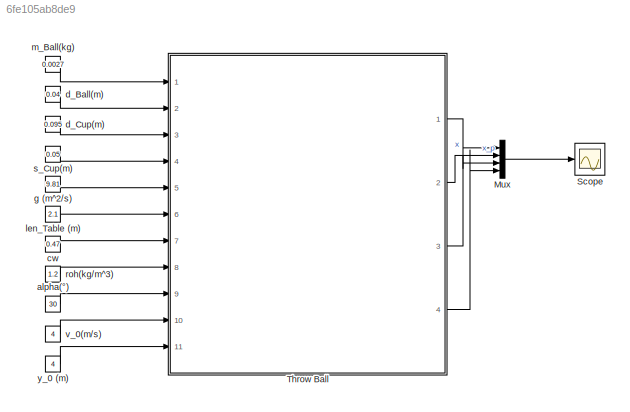
MODEL slx_6fe105ab8de9
KIND model
CONFIG AbsTol = auto
CONFIG EnableMultiTasking = off
CONFIG FixedStep = auto
CONFIG MaxStep = auto
CONFIG MinStep = auto
CONFIG RelTol = 1e-3
CONFIG SampleTimeConstraint = Unconstrained
CONFIG SolverName = VariableStepAuto
CONFIG StartTime = 0.0
CONFIG StopTime = 5.0
WORKSPACE source: mxarray member
WORKSPACE c_w = 0.47
WORKSPACE d_Ball = 0.04
WORKSPACE d_cup = 0.095
WORKSPACE g = 9.81
WORKSPACE len = 2.1
WORKSPACE m_Ball = 2.7
WORKSPACE roh = 1.2
WORKSPACE s_cup = 0.05
BLOCK [Mux] Mux
  DisplayOption = bar
  Ports = [4, 1]
BLOCK [Scope] Scope
  Floating = off
  NumInputPorts = 1
  Ports = [1]
  ScopeSpecificationString = Simulink.scopes.TimeScopeBlockCfg('CurrentConfiguration', extmgr.ConfigurationSet(extmgr.Configuration('Core','General UI',true),extmgr.Configuration('Core','Source UI',true),extmgr.Configuration('Sources','WiredSimulink',true,'DataLoggingVariableName','ScopeData4'),extmgr.Configuration('Visuals','Time Domain',true,'SerializedDisplays',{struct('MinYLimReal','-10.24797','MaxYLimReal','5.78236','YLa...<+1402ch>
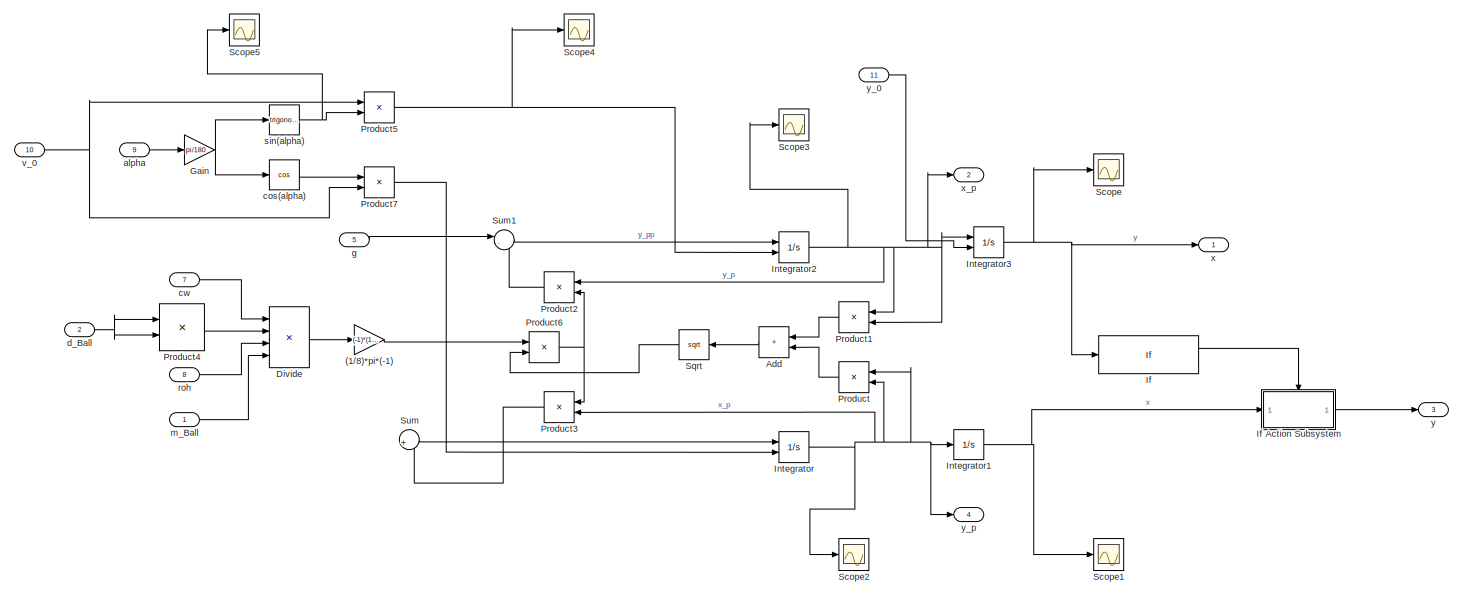
[diagram: Throw Ball - part 1/2, most of the canvas]
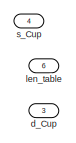
[diagram: Throw Ball - part 2/2, middle left region]
BLOCK [SubSystem] Throw Ball
  Ports = [11, 4]
  RequestExecContextInheritance = off
BLOCK [Trigonometry] Throw Ball/ sin(alpha)
  OutputSignalType = real
  Ports = [1, 1]
BLOCK [Gain] Throw Ball/(1//8)*pi*(-1)
  Gain = (-1)*(1/8)*pi
BLOCK [Sum] Throw Ball/Add
  IconShape = rectangular
  Ports = [2, 1]
BLOCK [Product] Throw Ball/Divide
  Inputs = ***/
  Ports = [4, 1]
BLOCK [Gain] Throw Ball/Gain
  Gain = pi/180
BLOCK [If] Throw Ball/If
  Ports = [1, 2]
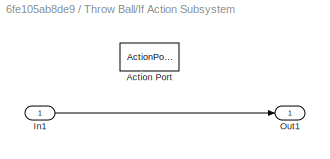
BLOCK [SubSystem] Throw Ball/If Action Subsystem
  Ports = [1, 1, 0, 0, 0, 0, 0, 1]
  RequestExecContextInheritance = off
  TreatAsAtomicUnit = on
BLOCK [ActionPort] Throw Ball/If Action Subsystem/Action Port
  ActionPortLabel = if(u1 > 0)
BLOCK [Inport] Throw Ball/If Action Subsystem/In1
BLOCK [Outport] Throw Ball/If Action Subsystem/Out1
BLOCK [Integrator] Throw Ball/Integrator
  InitialCondition = 2
  InitialConditionSource = external
  Ports = [2, 1]
BLOCK [Integrator] Throw Ball/Integrator1
  LimitOutput = on
  LowerSaturationLimit = 0
  Ports = [1, 1]
BLOCK [Integrator] Throw Ball/Integrator2
  InitialConditionSource = external
  LimitOutput = on
  Ports = [2, 1]
BLOCK [Integrator] Throw Ball/Integrator3
  InitialCondition = 1
  InitialConditionSource = external
  LimitOutput = on
  LowerSaturationLimit = 0
  Ports = [2, 1]
BLOCK [Product] Throw Ball/Product
  Ports = [2, 1]
BLOCK [Product] Throw Ball/Product1
  Ports = [2, 1]
BLOCK [Product] Throw Ball/Product2
  Ports = [2, 1]
BLOCK [Product] Throw Ball/Product3
  Ports = [2, 1]
BLOCK [Product] Throw Ball/Product4
  Ports = [2, 1]
BLOCK [Product] Throw Ball/Product5
  Ports = [2, 1]
BLOCK [Product] Throw Ball/Product6
  Ports = [2, 1]
BLOCK [Product] Throw Ball/Product7
  Ports = [2, 1]
BLOCK [Scope] Throw Ball/Scope
  Floating = off
  NumInputPorts = 1
  Ports = [1]
  ScopeSpecificationString = Simulink.scopes.TimeScopeBlockCfg('CurrentConfiguration', extmgr.ConfigurationSet(extmgr.Configuration('Core','General UI',true,'DisplayFullSourceName',true),extmgr.Configuration('Core','Source UI',true),extmgr.Configuration('Sources','WiredSimulink',true),extmgr.Configuration('Visuals','Time Domain',true,'SerializedDisplays',{struct('MinYLimReal','-0.52242','MaxYLimReal','4.70174','YLabelReal',''...<+1421ch>
BLOCK [Scope] Throw Ball/Scope1
  Floating = off
  NumInputPorts = 1
  Ports = [1]
  ScopeSpecificationString = Simulink.scopes.TimeScopeBlockCfg('CurrentConfiguration', extmgr.ConfigurationSet(extmgr.Configuration('Core','General UI',true),extmgr.Configuration('Core','Source UI',true),extmgr.Configuration('Sources','WiredSimulink',true,'DataLoggingVariableName','ScopeData1'),extmgr.Configuration('Visuals','Time Domain',true,'SerializedDisplays',{struct('MinYLimReal','-0.57831','MaxYLimReal','5.20483','YLab...<+1360ch>
BLOCK [Scope] Throw Ball/Scope2
  Floating = off
  NumInputPorts = 1
  Ports = [1]
  ScopeSpecificationString = Simulink.scopes.TimeScopeBlockCfg('CurrentConfiguration', extmgr.ConfigurationSet(extmgr.Configuration('Core','General UI',true),extmgr.Configuration('Core','Source UI',true),extmgr.Configuration('Sources','WiredSimulink',true,'DataLoggingVariableName','ScopeData2'),extmgr.Configuration('Visuals','Time Domain',true),extmgr.Configuration('Tools','Plot Navigation',true),extmgr.Configuration('Tools',...<+40ch>
BLOCK [Scope] Throw Ball/Scope3
  Floating = off
  NumInputPorts = 1
  Ports = [1]
  ScopeSpecificationString = Simulink.scopes.TimeScopeBlockCfg('CurrentConfiguration', extmgr.ConfigurationSet(extmgr.Configuration('Core','General UI',true),extmgr.Configuration('Core','Source UI',true),extmgr.Configuration('Sources','WiredSimulink',true,'DataLoggingVariableName','ScopeData3'),extmgr.Configuration('Visuals','Time Domain',true),extmgr.Configuration('Tools','Plot Navigation',true),extmgr.Configuration('Tools',...<+40ch>
BLOCK [Scope] Throw Ball/Scope4
  Floating = off
  NumInputPorts = 1
  Ports = [1]
  ScopeSpecificationString = Simulink.scopes.TimeScopeBlockCfg('CurrentConfiguration', extmgr.ConfigurationSet(extmgr.Configuration('Core','General UI',true),extmgr.Configuration('Core','Source UI',true),extmgr.Configuration('Sources','WiredSimulink',true,'DataLoggingVariableName','ScopeData5'),extmgr.Configuration('Visuals','Time Domain',true,'SerializedDisplays',{struct('MinYLimReal','-4.46749','MaxYLimReal','-3.41857','YLa...<+1423ch>
BLOCK [Scope] Throw Ball/Scope5
  Floating = off
  NumInputPorts = 1
  Ports = [1]
  ScopeSpecificationString = Simulink.scopes.TimeScopeBlockCfg('CurrentConfiguration', extmgr.ConfigurationSet(extmgr.Configuration('Core','General UI',true),extmgr.Configuration('Core','Source UI',true),extmgr.Configuration('Sources','WiredSimulink',true,'DataLoggingVariableName','ScopeData6'),extmgr.Configuration('Visuals','Time Domain',true,'SerializedDisplays',{struct('MinYLimReal','0.4','MaxYLimReal','0.6','YLabelReal','...<+1390ch>
BLOCK [Sqrt] Throw Ball/Sqrt
BLOCK [Sum] Throw Ball/Sum
  Inputs = |+
  NameLocation = top
  Ports = [1, 1]
BLOCK [Sum] Throw Ball/Sum1
  Inputs = |-+
  Ports = [2, 1]
BLOCK [Inport] Throw Ball/alpha
  Port = 9
BLOCK [Trigonometry] Throw Ball/cos(alpha)
  Operator = cos
  Ports = [1, 1]
BLOCK [Inport] Throw Ball/cw
  Port = 7
BLOCK [Inport] Throw Ball/d_Ball
  Port = 2
BLOCK [Inport] Throw Ball/d_Cup
  Port = 3
BLOCK [Inport] Throw Ball/g
  Port = 5
BLOCK [Inport] Throw Ball/len_table
  Port = 6
BLOCK [Inport] Throw Ball/m_Ball
BLOCK [Inport] Throw Ball/roh
  Port = 8
BLOCK [Inport] Throw Ball/s_Cup
  Port = 4
BLOCK [Inport] Throw Ball/v_0
  Port = 10
BLOCK [Outport] Throw Ball/x
BLOCK [Outport] Throw Ball/x_p
  Port = 2
BLOCK [Outport] Throw Ball/y
  Port = 3
BLOCK [Inport] Throw Ball/y_0
  Port = 11
BLOCK [Outport] Throw Ball/y_p
  Port = 4
BLOCK [Constant] alpha(°)
  Value = 30
BLOCK [Constant] cw
  Value = 0.47
BLOCK [Constant] d_Ball(m)
  Value = 0.04
BLOCK [Constant] d_Cup(m)
  Value = 0.095
BLOCK [Constant] g (m^2//s)
  Value = 9.81
BLOCK [Constant] len_Table (m)
  Value = 2.1
BLOCK [Constant] m_Ball(kg)
  Value = 0.0027
BLOCK [Constant] roh(kg//m^3)
  Value = 1.2
BLOCK [Constant] s_Cup(m)
  Value = 0.05
BLOCK [Constant] v_0(m//s)
  Value = 4
BLOCK [Constant] y_0 (m)
  Value = 4
LINE Mux:1 -> Scope:1
NET Throw Ball/ sin(alpha):1 -> Throw Ball/Product5:2, Throw Ball/Scope5:1
LINE Throw Ball/(1//8)*pi*(-1):1 -> Throw Ball/Product6:1
LINE Throw Ball/Add:1 -> Throw Ball/Sqrt:1
LINE Throw Ball/Divide:1 -> Throw Ball/(1//8)*pi*(-1):1
NET Throw Ball/Gain:1 -> Throw Ball/ sin(alpha):1, Throw Ball/cos(alpha):1
LINE Throw Ball/If Action Subsystem/In1:1 -> Throw Ball/If Action Subsystem/Out1:1
LINE Throw Ball/If Action Subsystem:1 -> Throw Ball/y:1
LINE Throw Ball/If:1 -> Throw Ball/If Action Subsystem:ifaction
NET Throw Ball/Integrator1:1 -> Throw Ball/If Action Subsystem:1, Throw Ball/Scope1:1
NET Throw Ball/Integrator2:1 -> Throw Ball/Integrator3:1, Throw Ball/Product1:1, Throw Ball/Product1:2, Throw Ball/Product2:1, Throw Ball/Scope3:1, Throw Ball/x_p:1
NET Throw Ball/Integrator3:1 -> Throw Ball/If:1, Throw Ball/Scope:1, Throw Ball/x:1
NET Throw Ball/Integrator:1 -> Throw Ball/Integrator1:1, Throw Ball/Product3:2, Throw Ball/Product:1, Throw Ball/Product:2, Throw Ball/Scope2:1, Throw Ball/y_p:1
LINE Throw Ball/Product1:1 -> Throw Ball/Add:1
LINE Throw Ball/Product2:1 -> Throw Ball/Sum1:2
LINE Throw Ball/Product3:1 -> Throw Ball/Sum:1
LINE Throw Ball/Product4:1 -> Throw Ball/Divide:2
NET Throw Ball/Product5:1 -> Throw Ball/Integrator2:2, Throw Ball/Scope4:1
NET Throw Ball/Product6:1 -> Throw Ball/Product2:2, Throw Ball/Product3:1
LINE Throw Ball/Product7:1 -> Throw Ball/Integrator:2
LINE Throw Ball/Product:1 -> Throw Ball/Add:2
LINE Throw Ball/Sqrt:1 -> Throw Ball/Product6:2
LINE Throw Ball/Sum1:1 -> Throw Ball/Integrator2:1
LINE Throw Ball/Sum:1 -> Throw Ball/Integrator:1
LINE Throw Ball/alpha:1 -> Throw Ball/Gain:1
LINE Throw Ball/cos(alpha):1 -> Throw Ball/Product7:1
LINE Throw Ball/cw:1 -> Throw Ball/Divide:1
NET Throw Ball/d_Ball:1 -> Throw Ball/Product4:1, Throw Ball/Product4:2
LINE Throw Ball/g:1 -> Throw Ball/Sum1:1
LINE Throw Ball/m_Ball:1 -> Throw Ball/Divide:4
LINE Throw Ball/roh:1 -> Throw Ball/Divide:3
NET Throw Ball/v_0:1 -> Throw Ball/Product5:1, Throw Ball/Product7:2
LINE Throw Ball/y_0:1 -> Throw Ball/Integrator3:2
LINE Throw Ball:1 -> Mux:1
LINE Throw Ball:2 -> Mux:2
LINE Throw Ball:3 -> Mux:3
LINE Throw Ball:4 -> Mux:4
LINE alpha(°):1 -> Throw Ball:9
LINE cw:1 -> Throw Ball:7
LINE d_Ball(m):1 -> Throw Ball:2
LINE d_Cup(m):1 -> Throw Ball:3
LINE g (m^2//s):1 -> Throw Ball:5
LINE len_Table (m):1 -> Throw Ball:6
LINE m_Ball(kg):1 -> Throw Ball:1
LINE roh(kg//m^3):1 -> Throw Ball:8
LINE s_Cup(m):1 -> Throw Ball:4
LINE v_0(m//s):1 -> Throw Ball:10
LINE y_0 (m):1 -> Throw Ball:11
note: NET lines group one-source signal fan-out (src -> all destinations, sorted); 1:1 wires keep LINE
